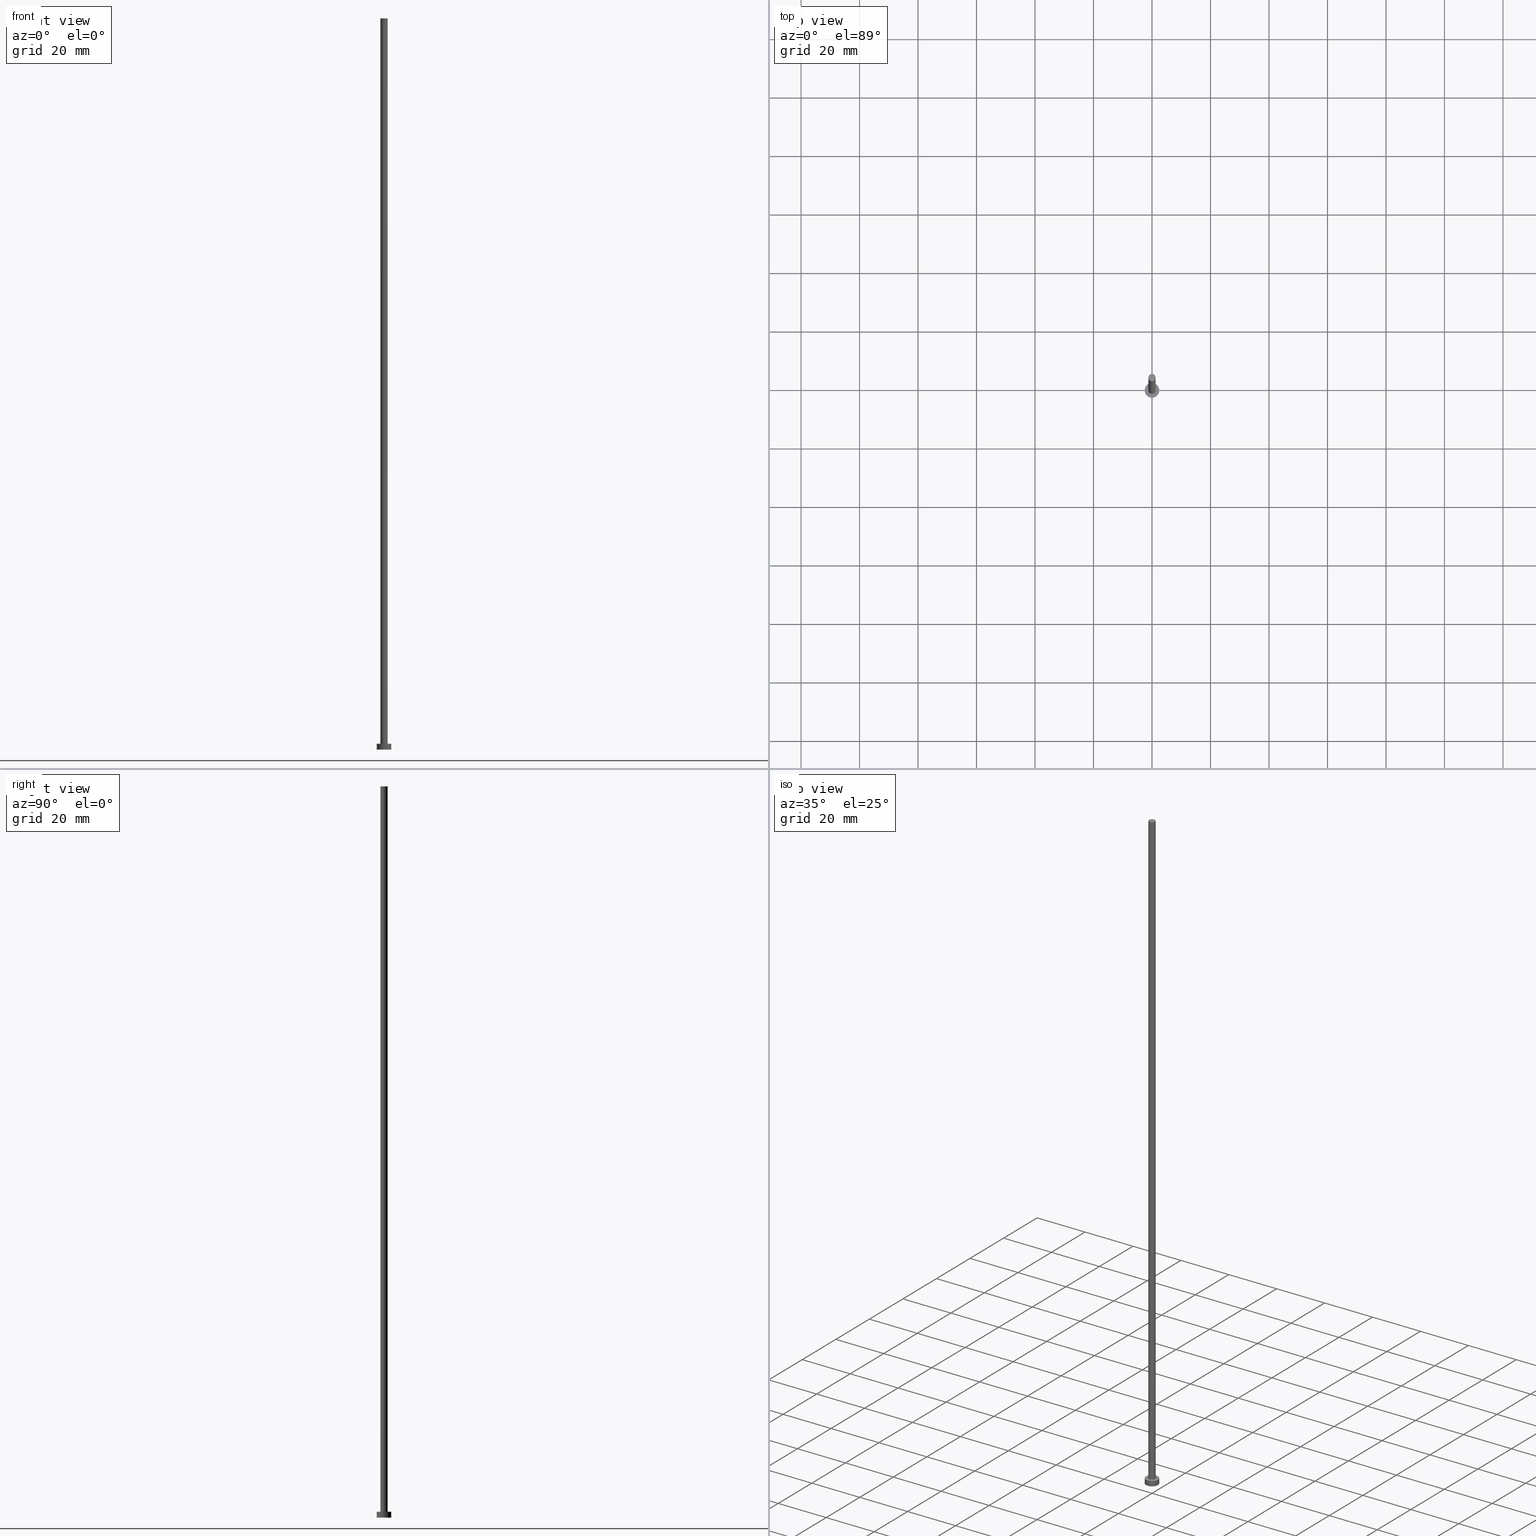
[diagram: canonical four-view strip — front | top / right | iso, engineering-drawing reading convention]
A machine part, canonical four-view strip (front | top / right | iso — engineering-drawing reading convention). The complete STEP part file that produces these views, byte-faithful:
ISO-10303-21;
HEADER;
FILE_DESCRIPTION (( 'STEP AP203' ),
    '1' );
FILE_NAME ('a096.STEP',
    '2023-02-13T15:57:18',
    ( '' ),
    ( '' ),
    'SwSTEP 2.0',
    'SolidWorks 2019',
    '' );
FILE_SCHEMA (( 'CONFIG_CONTROL_DESIGN' ));
ENDSEC;

DATA;
#1 = CC_DESIGN_APPROVAL ( #243, ( #98 ) ) ;
#2 = ORIENTED_EDGE ( 'NONE', *, *, #116, .T. ) ;
#3 = DIRECTION ( 'NONE',  ( 0.000000000000000000, 0.000000000000000000, 1.000000000000000000 ) ) ;
#4 = APPROVAL ( #231, 'NEUR�EN�' ) ;
#5 = AXIS2_PLACEMENT_3D ( 'NONE', #182, #8, #162 ) ;
#6 = DIRECTION ( 'NONE',  ( 0.000000000000000000, 0.000000000000000000, 1.000000000000000000 ) ) ;
#7 = PERSON_AND_ORGANIZATION ( #251, #166 ) ;
#8 = DIRECTION ( 'NONE',  ( 0.000000000000000000, 0.000000000000000000, 1.000000000000000000 ) ) ;
#9 = FACE_OUTER_BOUND ( 'NONE', #255, .T. ) ;
#10 = AXIS2_PLACEMENT_3D ( 'NONE', #128, #35, #45 ) ;
#11 = COORDINATED_UNIVERSAL_TIME_OFFSET ( 1, 0, .AHEAD. ) ;
#12 = DIRECTION ( 'NONE',  ( -1.000000000000000000, 0.000000000000000000, 0.000000000000000000 ) ) ;
#13 = ORIENTED_EDGE ( 'NONE', *, *, #106, .F. ) ;
#14 = DIRECTION ( 'NONE',  ( -0.000000000000000000, -0.000000000000000000, -1.000000000000000000 ) ) ;
#15 = APPROVAL_ROLE ( '' ) ;
#16 = DIRECTION ( 'NONE',  ( -0.000000000000000000, -0.000000000000000000, -1.000000000000000000 ) ) ;
#17 = COORDINATED_UNIVERSAL_TIME_OFFSET ( 1, 0, .AHEAD. ) ;
#18 = VERTEX_POINT ( 'NONE', #197 ) ;
#19 = ORIENTED_EDGE ( 'NONE', *, *, #107, .T. ) ;
#20 = AXIS2_PLACEMENT_3D ( 'NONE', #211, #72, #220 ) ;
#21 = CARTESIAN_POINT ( 'NONE',  ( 1.250000000000000000, 1.530808498934191571E-16, 250.0000000000000000 ) ) ;
#22 = CC_DESIGN_SECURITY_CLASSIFICATION ( #138, ( #98 ) ) ;
#23 = CC_DESIGN_PERSON_AND_ORGANIZATION_ASSIGNMENT ( #7, #68, ( #174 ) ) ;
#24 = DIRECTION ( 'NONE',  ( 1.000000000000000000, 0.000000000000000000, -0.000000000000000000 ) ) ;
#25 = AXIS2_PLACEMENT_3D ( 'NONE', #177, #3, #84 ) ;
#26 = ADVANCED_BREP_SHAPE_REPRESENTATION ( 'a096', ( #30, #134 ), #154 ) ;
#27 = CARTESIAN_POINT ( 'NONE',  ( -2.500000000000000000, 0.000000000000000000, 2.000000000000000000 ) ) ;
#28 = DIRECTION ( 'NONE',  ( -0.000000000000000000, -0.000000000000000000, -1.000000000000000000 ) ) ;
#29 = MECHANICAL_CONTEXT ( 'NONE', #167, 'mechanical' ) ;
#30 = MANIFOLD_SOLID_BREP ( 'P�idat vysunut�m3', #195 ) ;
#31 = CARTESIAN_POINT ( 'NONE',  ( 2.500000000000000000, 3.061616997868383141E-16, 2.000000000000000000 ) ) ;
#32 = FACE_OUTER_BOUND ( 'NONE', #56, .T. ) ;
#33 = PERSON_AND_ORGANIZATION ( #251, #166 ) ;
#34 = CARTESIAN_POINT ( 'NONE',  ( 0.000000000000000000, 0.000000000000000000, 0.000000000000000000 ) ) ;
#35 = DIRECTION ( 'NONE',  ( -0.000000000000000000, -0.000000000000000000, -1.000000000000000000 ) ) ;
#36 = VERTEX_POINT ( 'NONE', #21 ) ;
#37 = CC_DESIGN_PERSON_AND_ORGANIZATION_ASSIGNMENT ( #54, #186, ( #90 ) ) ;
#38 = AXIS2_PLACEMENT_3D ( 'NONE', #135, #48, #121 ) ;
#39 = VERTEX_POINT ( 'NONE', #104 ) ;
#40 = VERTEX_POINT ( 'NONE', #155 ) ;
#41 = CARTESIAN_POINT ( 'NONE',  ( 0.000000000000000000, 0.000000000000000000, 0.000000000000000000 ) ) ;
#42 = CYLINDRICAL_SURFACE ( 'NONE', #89, 2.500000000000000000 ) ;
#43 = ORIENTED_EDGE ( 'NONE', *, *, #51, .T. ) ;
#44 = LINE ( 'NONE', #65, #157 ) ;
#45 = DIRECTION ( 'NONE',  ( -1.000000000000000000, 0.000000000000000000, 0.000000000000000000 ) ) ;
#46 = CC_DESIGN_PERSON_AND_ORGANIZATION_ASSIGNMENT ( #242, #181, ( #98 ) ) ;
#47 = APPROVAL_PERSON_ORGANIZATION ( #33, #137, #203 ) ;
#48 = DIRECTION ( 'NONE',  ( 0.000000000000000000, 0.000000000000000000, 1.000000000000000000 ) ) ;
#49 = CIRCLE ( 'NONE', #25, 2.500000000000000000 ) ;
#50 = APPROVAL_DATE_TIME ( #225, #137 ) ;
#51 = EDGE_CURVE ( 'NONE', #36, #18, #113, .T. ) ;
#52 = AXIS2_PLACEMENT_3D ( 'NONE', #115, #126, #213 ) ;
#53 = CARTESIAN_POINT ( 'NONE',  ( -2.500000000000000000, 0.000000000000000000, 0.000000000000000000 ) ) ;
#54 = PERSON_AND_ORGANIZATION ( #251, #166 ) ;
#55 = APPROVAL_DATE_TIME ( #165, #243 ) ;
#56 = EDGE_LOOP ( 'NONE', ( #13, #59 ) ) ;
#57 = ORIENTED_EDGE ( 'NONE', *, *, #66, .T. ) ;
#58 = CIRCLE ( 'NONE', #110, 2.500000000000000000 ) ;
#59 = ORIENTED_EDGE ( 'NONE', *, *, #116, .F. ) ;
#60 = LOCAL_TIME ( 16, 57, 18.00000000000000000, #139 ) ;
#61 = ORIENTED_EDGE ( 'NONE', *, *, #254, .T. ) ;
#62 = CYLINDRICAL_SURFACE ( 'NONE', #230, 1.250000000000000000 ) ;
#63 = FACE_OUTER_BOUND ( 'NONE', #131, .T. ) ;
#64 = AXIS2_PLACEMENT_3D ( 'NONE', #132, #119, #91 ) ;
#65 = CARTESIAN_POINT ( 'NONE',  ( -1.250000000000000000, 0.000000000000000000, 250.0000000000000000 ) ) ;
#66 = EDGE_CURVE ( 'NONE', #40, #36, #178, .T. ) ;
#67 = ADVANCED_FACE ( 'NONE', ( #108 ), #142, .T. ) ;
#68 = PERSON_AND_ORGANIZATION_ROLE ( 'design_owner' ) ;
#69 = DIRECTION ( 'NONE',  ( 0.000000000000000000, 0.000000000000000000, 1.000000000000000000 ) ) ;
#70 = PERSON_AND_ORGANIZATION_ROLE ( 'design_supplier' ) ;
#71 = CARTESIAN_POINT ( 'NONE',  ( 0.000000000000000000, 0.000000000000000000, 0.000000000000000000 ) ) ;
#72 = DIRECTION ( 'NONE',  ( -0.000000000000000000, -0.000000000000000000, -1.000000000000000000 ) ) ;
#73 = CALENDAR_DATE ( 2023, 13, 2 ) ;
#74 = FACE_OUTER_BOUND ( 'NONE', #221, .T. ) ;
#75 = CIRCLE ( 'NONE', #151, 2.500000000000000000 ) ;
#76 = ORIENTED_EDGE ( 'NONE', *, *, #164, .F. ) ;
#77 = EDGE_CURVE ( 'NONE', #36, #40, #144, .T. ) ;
#78 = CARTESIAN_POINT ( 'NONE',  ( -2.500000000000000000, 0.000000000000000000, 2.000000000000000000 ) ) ;
#79 = COORDINATED_UNIVERSAL_TIME_OFFSET ( 1, 0, .AHEAD. ) ;
#80 = ORIENTED_EDGE ( 'NONE', *, *, #156, .F. ) ;
#81 = DIRECTION ( 'NONE',  ( 1.000000000000000000, 0.000000000000000000, 0.000000000000000000 ) ) ;
#82 = AXIS2_PLACEMENT_3D ( 'NONE', #247, #170, #248 ) ;
#83 = EDGE_LOOP ( 'NONE', ( #148, #227, #192, #218 ) ) ;
#84 = DIRECTION ( 'NONE',  ( 1.000000000000000000, 0.000000000000000000, 0.000000000000000000 ) ) ;
#85 = APPROVAL_PERSON_ORGANIZATION ( #253, #4, #15 ) ;
#86 = CARTESIAN_POINT ( 'NONE',  ( 2.500000000000000000, 3.061616997868383141E-16, 2.000000000000000000 ) ) ;
#87 = ORIENTED_EDGE ( 'NONE', *, *, #184, .F. ) ;
#88 = PLANE ( 'NONE',  #38 ) ;
#89 = AXIS2_PLACEMENT_3D ( 'NONE', #214, #28, #194 ) ;
#90 = PRODUCT_DEFINITION ( 'NEZN�M�', '', #98, #228 ) ;
#91 = DIRECTION ( 'NONE',  ( 1.000000000000000000, 0.000000000000000000, 0.000000000000000000 ) ) ;
#92 = PERSON_AND_ORGANIZATION ( #251, #166 ) ;
#93 = VECTOR ( 'NONE', #209, 1000.000000000000000 ) ;
#94 = DIRECTION ( 'NONE',  ( 1.000000000000000000, 0.000000000000000000, -0.000000000000000000 ) ) ;
#95 = CARTESIAN_POINT ( 'NONE',  ( 0.000000000000000000, 0.000000000000000000, 250.0000000000000000 ) ) ;
#96 = APPROVAL_ROLE ( '' ) ;
#97 = SHAPE_DEFINITION_REPRESENTATION ( #136, #26 ) ;
#98 = PRODUCT_DEFINITION_FORMATION_WITH_SPECIFIED_SOURCE ( 'LIBOVOLN�', '', #174, .NOT_KNOWN. ) ;
#99 = VECTOR ( 'NONE', #193, 1000.000000000000000 ) ;
#100 = CARTESIAN_POINT ( 'NONE',  ( 0.000000000000000000, 0.000000000000000000, 250.0000000000000000 ) ) ;
#101 = VERTEX_POINT ( 'NONE', #53 ) ;
#102 = CIRCLE ( 'NONE', #64, 1.250000000000000000 ) ;
#103 = CARTESIAN_POINT ( 'NONE',  ( -1.250000000000000000, 0.000000000000000000, 2.000000000000000000 ) ) ;
#104 = CARTESIAN_POINT ( 'NONE',  ( 2.500000000000000000, 3.061616997868383141E-16, 0.000000000000000000 ) ) ;
#105 =( NAMED_UNIT ( * ) PLANE_ANGLE_UNIT ( ) SI_UNIT ( $, .RADIAN. ) );
#106 = EDGE_CURVE ( 'NONE', #101, #39, #75, .T. ) ;
#107 = EDGE_CURVE ( 'NONE', #169, #101, #152, .T. ) ;
#108 = FACE_OUTER_BOUND ( 'NONE', #216, .T. ) ;
#109 = CALENDAR_DATE ( 2023, 13, 2 ) ;
#110 = AXIS2_PLACEMENT_3D ( 'NONE', #41, #219, #239 ) ;
#111 = DIRECTION ( 'NONE',  ( 1.000000000000000000, 0.000000000000000000, 0.000000000000000000 ) ) ;
#112 = ADVANCED_FACE ( 'NONE', ( #32 ), #212, .F. ) ;
#113 = LINE ( 'NONE', #236, #176 ) ;
#114 = ORIENTED_EDGE ( 'NONE', *, *, #224, .F. ) ;
#115 = CARTESIAN_POINT ( 'NONE',  ( 0.000000000000000000, 0.000000000000000000, 2.000000000000000000 ) ) ;
#116 = EDGE_CURVE ( 'NONE', #39, #101, #58, .T. ) ;
#117 = ORIENTED_EDGE ( 'NONE', *, *, #77, .F. ) ;
#118 = AXIS2_PLACEMENT_3D ( 'NONE', #100, #6, #111 ) ;
#119 = DIRECTION ( 'NONE',  ( 0.000000000000000000, 0.000000000000000000, 1.000000000000000000 ) ) ;
#120 = ADVANCED_FACE ( 'NONE', ( #198, #63 ), #88, .T. ) ;
#121 = DIRECTION ( 'NONE',  ( 1.000000000000000000, 0.000000000000000000, -0.000000000000000000 ) ) ;
#122 = APPROVAL_STATUS ( 'not_yet_approved' ) ;
#123 = DATE_AND_TIME ( #229, #245 ) ;
#124 = ORIENTED_EDGE ( 'NONE', *, *, #224, .T. ) ;
#125 = LINE ( 'NONE', #31, #99 ) ;
#126 = DIRECTION ( 'NONE',  ( 0.000000000000000000, 0.000000000000000000, 1.000000000000000000 ) ) ;
#127 = CC_DESIGN_DATE_AND_TIME_ASSIGNMENT ( #123, #205, ( #90 ) ) ;
#128 = CARTESIAN_POINT ( 'NONE',  ( 0.000000000000000000, 0.000000000000000000, 2.000000000000000000 ) ) ;
#129 = ORIENTED_EDGE ( 'NONE', *, *, #159, .F. ) ;
#130 = EDGE_LOOP ( 'NONE', ( #87, #175, #19, #238 ) ) ;
#131 = EDGE_LOOP ( 'NONE', ( #61, #215 ) ) ;
#132 = CARTESIAN_POINT ( 'NONE',  ( 0.000000000000000000, 0.000000000000000000, 2.000000000000000000 ) ) ;
#133 = PRODUCT_RELATED_PRODUCT_CATEGORY ( 'detail', '', ( #174 ) ) ;
#134 = AXIS2_PLACEMENT_3D ( 'NONE', #71, #143, #208 ) ;
#135 = CARTESIAN_POINT ( 'NONE',  ( 0.000000000000000000, 0.000000000000000000, 2.000000000000000000 ) ) ;
#136 = PRODUCT_DEFINITION_SHAPE ( 'NONE', 'NONE',  #90 ) ;
#137 = APPROVAL ( #122, 'NEUR�EN�' ) ;
#138 = SECURITY_CLASSIFICATION ( '', '', #206 ) ;
#139 = COORDINATED_UNIVERSAL_TIME_OFFSET ( 1, 0, .AHEAD. ) ;
#140 = CARTESIAN_POINT ( 'NONE',  ( 0.000000000000000000, 0.000000000000000000, 0.000000000000000000 ) ) ;
#141 = PERSON_AND_ORGANIZATION ( #251, #166 ) ;
#142 = PLANE ( 'NONE',  #183 ) ;
#143 = DIRECTION ( 'NONE',  ( 0.000000000000000000, 0.000000000000000000, 1.000000000000000000 ) ) ;
#144 = CIRCLE ( 'NONE', #5, 1.250000000000000000 ) ;
#145 = FACE_OUTER_BOUND ( 'NONE', #130, .T. ) ;
#146 = DATE_TIME_ROLE ( 'classification_date' ) ;
#147 = LOCAL_TIME ( 16, 57, 18.00000000000000000, #79 ) ;
#148 = ORIENTED_EDGE ( 'NONE', *, *, #51, .F. ) ;
#149 = CALENDAR_DATE ( 2023, 13, 2 ) ;
#150 = ORIENTED_EDGE ( 'NONE', *, *, #184, .T. ) ;
#151 = AXIS2_PLACEMENT_3D ( 'NONE', #140, #252, #81 ) ;
#152 = LINE ( 'NONE', #78, #93 ) ;
#153 = ORIENTED_EDGE ( 'NONE', *, *, #77, .T. ) ;
#154 =( GEOMETRIC_REPRESENTATION_CONTEXT ( 3 ) GLOBAL_UNCERTAINTY_ASSIGNED_CONTEXT ( ( #179 ) ) GLOBAL_UNIT_ASSIGNED_CONTEXT ( ( #180, #105, #240 ) ) REPRESENTATION_CONTEXT ( 'NONE', 'WORKASPACE' ) );
#155 = CARTESIAN_POINT ( 'NONE',  ( -1.250000000000000000, 0.000000000000000000, 250.0000000000000000 ) ) ;
#156 = EDGE_CURVE ( 'NONE', #217, #18, #102, .T. ) ;
#157 = VECTOR ( 'NONE', #241, 1000.000000000000000 ) ;
#158 = CC_DESIGN_APPROVAL ( #4, ( #138 ) ) ;
#159 = EDGE_CURVE ( 'NONE', #173, #169, #49, .T. ) ;
#160 = PERSON_AND_ORGANIZATION ( #251, #166 ) ;
#161 = LOCAL_TIME ( 16, 57, 18.00000000000000000, #17 ) ;
#162 = DIRECTION ( 'NONE',  ( 1.000000000000000000, 0.000000000000000000, 0.000000000000000000 ) ) ;
#163 = APPLICATION_PROTOCOL_DEFINITION ( 'international standard', 'config_control_design', 1994, #167 ) ;
#164 = EDGE_CURVE ( 'NONE', #40, #217, #44, .T. ) ;
#165 = DATE_AND_TIME ( #73, #237 ) ;
#166 = ORGANIZATION ( 'NEUR�EN�', 'NEUR�EN�', '' ) ;
#167 = APPLICATION_CONTEXT ( 'configuration controlled 3d designs of mechanical parts and assemblies' ) ;
#168 = CALENDAR_DATE ( 2023, 13, 2 ) ;
#169 = VERTEX_POINT ( 'NONE', #27 ) ;
#170 = DIRECTION ( 'NONE',  ( 0.000000000000000000, 0.000000000000000000, 1.000000000000000000 ) ) ;
#171 = ADVANCED_FACE ( 'NONE', ( #9 ), #244, .T. ) ;
#172 = DATE_AND_TIME ( #149, #147 ) ;
#173 = VERTEX_POINT ( 'NONE', #86 ) ;
#174 = PRODUCT ( 'a096', 'a096', '', ( #29 ) ) ;
#175 = ORIENTED_EDGE ( 'NONE', *, *, #254, .F. ) ;
#176 = VECTOR ( 'NONE', #16, 1000.000000000000000 ) ;
#177 = CARTESIAN_POINT ( 'NONE',  ( 0.000000000000000000, 0.000000000000000000, 2.000000000000000000 ) ) ;
#178 = CIRCLE ( 'NONE', #118, 1.250000000000000000 ) ;
#179 = UNCERTAINTY_MEASURE_WITH_UNIT (LENGTH_MEASURE( 1.000000000000000082E-05 ), #180, 'distance_accuracy_value', 'NONE');
#180 =( LENGTH_UNIT ( ) NAMED_UNIT ( * ) SI_UNIT ( .MILLI., .METRE. ) );
#181 = PERSON_AND_ORGANIZATION_ROLE ( 'creator' ) ;
#182 = CARTESIAN_POINT ( 'NONE',  ( 0.000000000000000000, 0.000000000000000000, 250.0000000000000000 ) ) ;
#183 = AXIS2_PLACEMENT_3D ( 'NONE', #95, #69, #94 ) ;
#184 = EDGE_CURVE ( 'NONE', #173, #39, #125, .T. ) ;
#185 = APPROVAL_STATUS ( 'not_yet_approved' ) ;
#186 = PERSON_AND_ORGANIZATION_ROLE ( 'creator' ) ;
#187 = CIRCLE ( 'NONE', #82, 1.250000000000000000 ) ;
#188 = FACE_OUTER_BOUND ( 'NONE', #83, .T. ) ;
#189 = APPROVAL_PERSON_ORGANIZATION ( #141, #243, #96 ) ;
#190 = CYLINDRICAL_SURFACE ( 'NONE', #10, 2.500000000000000000 ) ;
#191 = PERSON_AND_ORGANIZATION_ROLE ( 'classification_officer' ) ;
#192 = ORIENTED_EDGE ( 'NONE', *, *, #164, .T. ) ;
#193 = DIRECTION ( 'NONE',  ( -0.000000000000000000, -0.000000000000000000, -1.000000000000000000 ) ) ;
#194 = DIRECTION ( 'NONE',  ( -1.000000000000000000, 0.000000000000000000, 0.000000000000000000 ) ) ;
#195 = CLOSED_SHELL ( 'NONE', ( #171, #249, #207, #120, #112, #223, #67 ) ) ;
#196 = APPROVAL_DATE_TIME ( #172, #4 ) ;
#197 = CARTESIAN_POINT ( 'NONE',  ( 1.250000000000000000, 1.530808498934191571E-16, 2.000000000000000000 ) ) ;
#198 = FACE_BOUND ( 'NONE', #233, .T. ) ;
#199 = APPLICATION_CONTEXT ( 'configuration controlled 3d designs of mechanical parts and assemblies' ) ;
#200 = DIRECTION ( 'NONE',  ( 0.000000000000000000, 0.000000000000000000, 1.000000000000000000 ) ) ;
#201 = CC_DESIGN_PERSON_AND_ORGANIZATION_ASSIGNMENT ( #92, #70, ( #98 ) ) ;
#202 = CC_DESIGN_APPROVAL ( #137, ( #90 ) ) ;
#203 = APPROVAL_ROLE ( '' ) ;
#204 = CC_DESIGN_PERSON_AND_ORGANIZATION_ASSIGNMENT ( #160, #191, ( #138 ) ) ;
#205 = DATE_TIME_ROLE ( 'creation_date' ) ;
#206 = SECURITY_CLASSIFICATION_LEVEL ( 'unclassified' ) ;
#207 = ADVANCED_FACE ( 'NONE', ( #145 ), #190, .T. ) ;
#208 = DIRECTION ( 'NONE',  ( 1.000000000000000000, 0.000000000000000000, 0.000000000000000000 ) ) ;
#209 = DIRECTION ( 'NONE',  ( -0.000000000000000000, -0.000000000000000000, -1.000000000000000000 ) ) ;
#210 = CIRCLE ( 'NONE', #52, 2.500000000000000000 ) ;
#211 = CARTESIAN_POINT ( 'NONE',  ( 0.000000000000000000, 0.000000000000000000, 250.0000000000000000 ) ) ;
#212 = PLANE ( 'NONE',  #222 ) ;
#213 = DIRECTION ( 'NONE',  ( 1.000000000000000000, 0.000000000000000000, 0.000000000000000000 ) ) ;
#214 = CARTESIAN_POINT ( 'NONE',  ( 0.000000000000000000, 0.000000000000000000, 2.000000000000000000 ) ) ;
#215 = ORIENTED_EDGE ( 'NONE', *, *, #159, .T. ) ;
#216 = EDGE_LOOP ( 'NONE', ( #57, #153 ) ) ;
#217 = VERTEX_POINT ( 'NONE', #103 ) ;
#218 = ORIENTED_EDGE ( 'NONE', *, *, #156, .T. ) ;
#219 = DIRECTION ( 'NONE',  ( 0.000000000000000000, 0.000000000000000000, 1.000000000000000000 ) ) ;
#220 = DIRECTION ( 'NONE',  ( -1.000000000000000000, 0.000000000000000000, 0.000000000000000000 ) ) ;
#221 = EDGE_LOOP ( 'NONE', ( #129, #150, #2, #235 ) ) ;
#222 = AXIS2_PLACEMENT_3D ( 'NONE', #34, #200, #24 ) ;
#223 = ADVANCED_FACE ( 'NONE', ( #188 ), #62, .T. ) ;
#224 = EDGE_CURVE ( 'NONE', #18, #217, #187, .T. ) ;
#225 = DATE_AND_TIME ( #109, #60 ) ;
#226 = COORDINATED_UNIVERSAL_TIME_OFFSET ( 1, 0, .AHEAD. ) ;
#227 = ORIENTED_EDGE ( 'NONE', *, *, #66, .F. ) ;
#228 = DESIGN_CONTEXT ( 'detailed design', #199, 'design' ) ;
#229 = CALENDAR_DATE ( 2023, 13, 2 ) ;
#230 = AXIS2_PLACEMENT_3D ( 'NONE', #234, #14, #12 ) ;
#231 = APPROVAL_STATUS ( 'not_yet_approved' ) ;
#232 = CC_DESIGN_DATE_AND_TIME_ASSIGNMENT ( #250, #146, ( #138 ) ) ;
#233 = EDGE_LOOP ( 'NONE', ( #80, #114 ) ) ;
#234 = CARTESIAN_POINT ( 'NONE',  ( 0.000000000000000000, 0.000000000000000000, 250.0000000000000000 ) ) ;
#235 = ORIENTED_EDGE ( 'NONE', *, *, #107, .F. ) ;
#236 = CARTESIAN_POINT ( 'NONE',  ( 1.250000000000000000, 1.530808498934191571E-16, 250.0000000000000000 ) ) ;
#237 = LOCAL_TIME ( 16, 57, 18.00000000000000000, #226 ) ;
#238 = ORIENTED_EDGE ( 'NONE', *, *, #106, .T. ) ;
#239 = DIRECTION ( 'NONE',  ( 1.000000000000000000, 0.000000000000000000, 0.000000000000000000 ) ) ;
#240 =( NAMED_UNIT ( * ) SI_UNIT ( $, .STERADIAN. ) SOLID_ANGLE_UNIT ( ) );
#241 = DIRECTION ( 'NONE',  ( -0.000000000000000000, -0.000000000000000000, -1.000000000000000000 ) ) ;
#242 = PERSON_AND_ORGANIZATION ( #251, #166 ) ;
#243 = APPROVAL ( #185, 'NEUR�EN�' ) ;
#244 = CYLINDRICAL_SURFACE ( 'NONE', #20, 1.250000000000000000 ) ;
#245 = LOCAL_TIME ( 16, 57, 18.00000000000000000, #11 ) ;
#246 = APPLICATION_PROTOCOL_DEFINITION ( 'international standard', 'config_control_design', 1994, #199 ) ;
#247 = CARTESIAN_POINT ( 'NONE',  ( 0.000000000000000000, 0.000000000000000000, 2.000000000000000000 ) ) ;
#248 = DIRECTION ( 'NONE',  ( 1.000000000000000000, 0.000000000000000000, 0.000000000000000000 ) ) ;
#249 = ADVANCED_FACE ( 'NONE', ( #74 ), #42, .T. ) ;
#250 = DATE_AND_TIME ( #168, #161 ) ;
#251 = PERSON ( 'NEUR�EN�', 'NEUR�EN�', 'NEUR�EN�', ('NEUR�EN�'), ('NEUR�EN�'), ('NEUR�EN�') ) ;
#252 = DIRECTION ( 'NONE',  ( 0.000000000000000000, 0.000000000000000000, 1.000000000000000000 ) ) ;
#253 = PERSON_AND_ORGANIZATION ( #251, #166 ) ;
#254 = EDGE_CURVE ( 'NONE', #169, #173, #210, .T. ) ;
#255 = EDGE_LOOP ( 'NONE', ( #117, #43, #124, #76 ) ) ;
ENDSEC;
END-ISO-10303-21;
